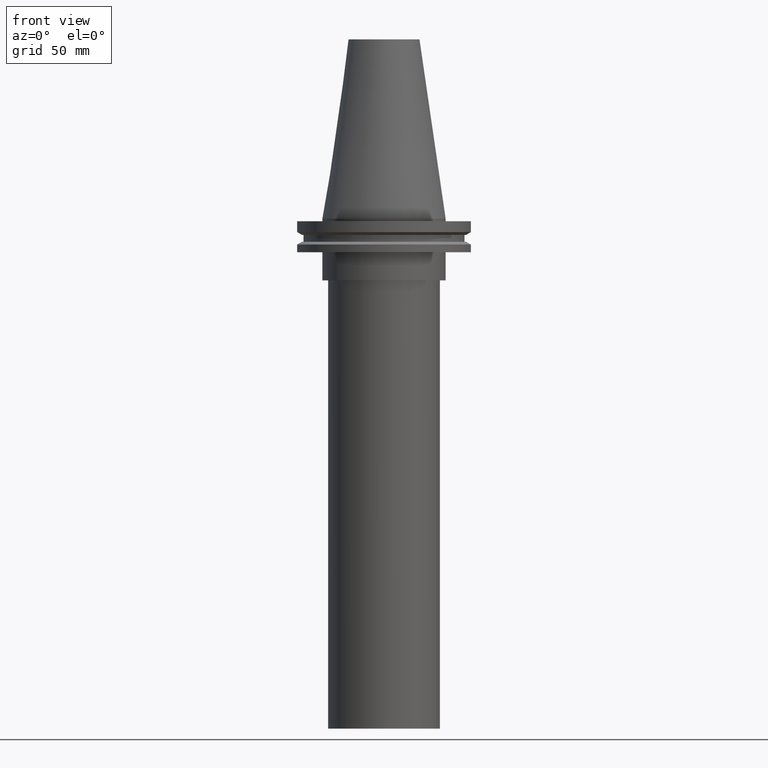
[diagram: clean part render]
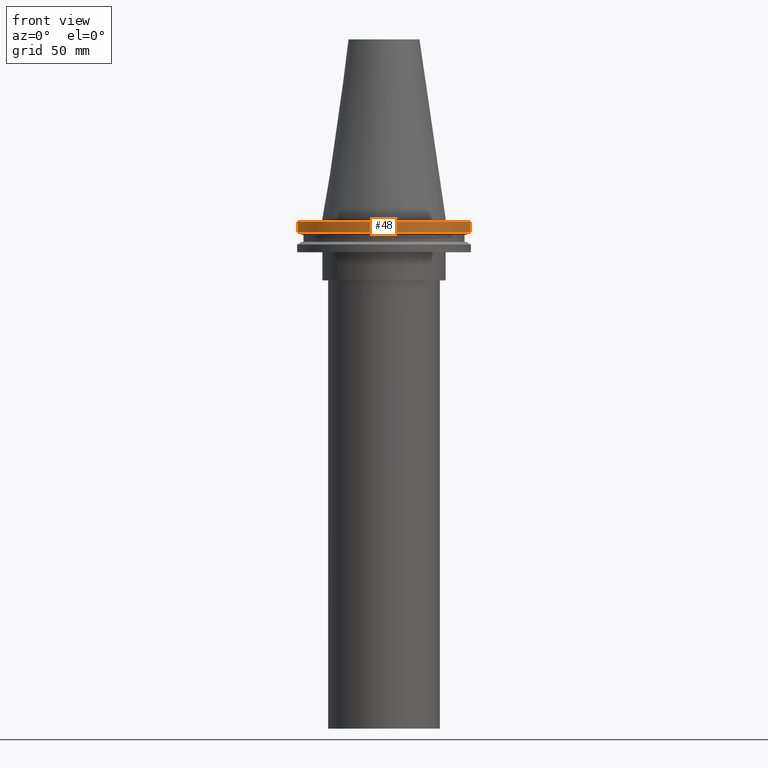
[diagram: same view with one face highlighted and labeled with its STEP entity id]
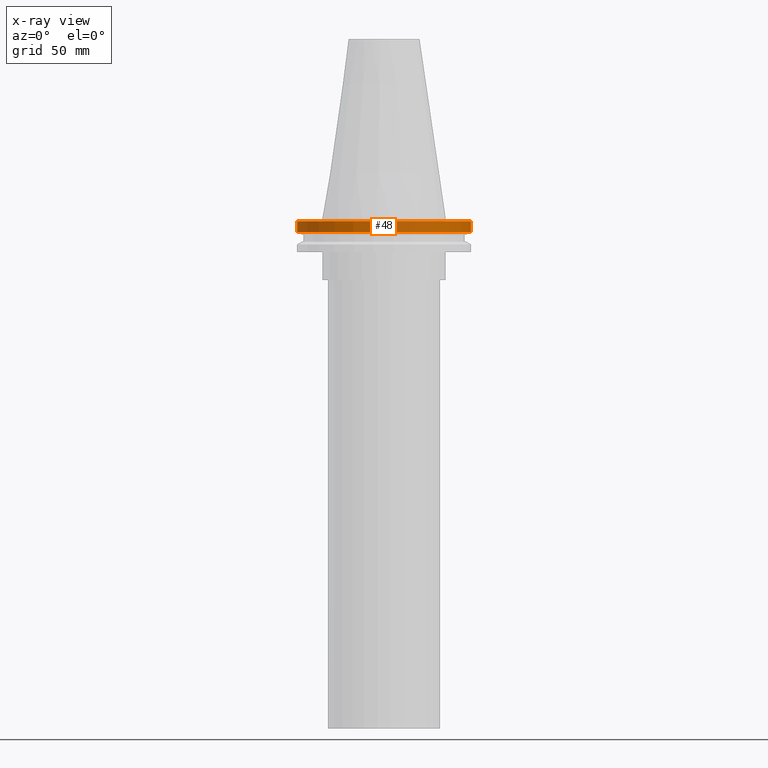
[diagram: x-ray of the same camera — body ghosted, the highlighted face saturated]
A machine part, front view. The second image highlights one B-rep face of the part: STEP entity #48.
The next image is the same camera in x-ray: the body ghosted, the highlighted face saturated — about 0% of this face is hidden behind the body in this view.
In plain terms, the highlighted cylindrical surface (bore or boss wall) has radius 49.215 mm, axis along (-0, -0, 1).
Its self-contained STEP definition (entity closure, byte-faithful):
#6 = AXIS2_PLACEMENT_3D ( 'NONE', #90, #182, #334 ) ;
#14 = VERTEX_POINT ( 'NONE', #19 ) ;
#19 = CARTESIAN_POINT ( 'NONE',  ( 49.21499999999999631, 0.000000000000000000, -1.499999999999987566 ) ) ;
#48 = ADVANCED_FACE ( 'NONE', ( #315, #113 ), #176, .T. ) ;
#50 = CIRCLE ( 'NONE', #6, 49.21499999999999631 ) ;
#80 = CARTESIAN_POINT ( 'NONE',  ( 0.000000000000000000, 0.000000000000000000, 101.5999999999999943 ) ) ;
#83 = AXIS2_PLACEMENT_3D ( 'NONE', #349, #207, #211 ) ;
#90 = CARTESIAN_POINT ( 'NONE',  ( 0.000000000000000000, 0.000000000000000000, -1.499999999999987566 ) ) ;
#113 = FACE_OUTER_BOUND ( 'NONE', #369, .T. ) ;
#121 = ORIENTED_EDGE ( 'NONE', *, *, #277, .F. ) ;
#135 = CARTESIAN_POINT ( 'NONE',  ( 49.21500000000000341, 0.000000000000000000, -7.602389855251287187 ) ) ;
#176 = CYLINDRICAL_SURFACE ( 'NONE', #328, 49.21499999999999631 ) ;
#182 = DIRECTION ( 'NONE',  ( -0.000000000000000000, -0.000000000000000000, 1.000000000000000000 ) ) ;
#207 = DIRECTION ( 'NONE',  ( -0.000000000000000000, -0.000000000000000000, 1.000000000000000000 ) ) ;
#211 = DIRECTION ( 'NONE',  ( 1.000000000000000000, 0.000000000000000000, 0.000000000000000000 ) ) ;
#221 = EDGE_CURVE ( 'NONE', #284, #284, #243, .T. ) ;
#227 = DIRECTION ( 'NONE',  ( 1.000000000000000000, 0.000000000000000000, 0.000000000000000000 ) ) ;
#234 = DIRECTION ( 'NONE',  ( -0.000000000000000000, -0.000000000000000000, 1.000000000000000000 ) ) ;
#243 = CIRCLE ( 'NONE', #83, 49.21500000000000341 ) ;
#244 = EDGE_LOOP ( 'NONE', ( #121 ) ) ;
#271 = ORIENTED_EDGE ( 'NONE', *, *, #221, .T. ) ;
#277 = EDGE_CURVE ( 'NONE', #14, #14, #50, .T. ) ;
#284 = VERTEX_POINT ( 'NONE', #135 ) ;
#315 = FACE_OUTER_BOUND ( 'NONE', #244, .T. ) ;
#328 = AXIS2_PLACEMENT_3D ( 'NONE', #80, #234, #227 ) ;
#334 = DIRECTION ( 'NONE',  ( 1.000000000000000000, 0.000000000000000000, 0.000000000000000000 ) ) ;
#349 = CARTESIAN_POINT ( 'NONE',  ( 0.000000000000000000, 0.000000000000000000, -7.602389855251287187 ) ) ;
#369 = EDGE_LOOP ( 'NONE', ( #271 ) ) ;